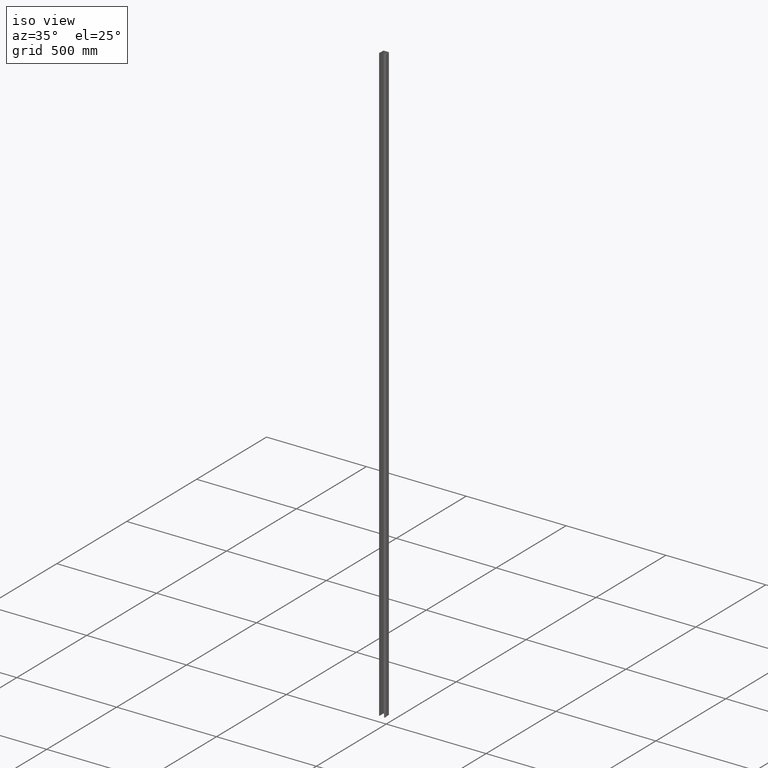
[diagram: clean part render]
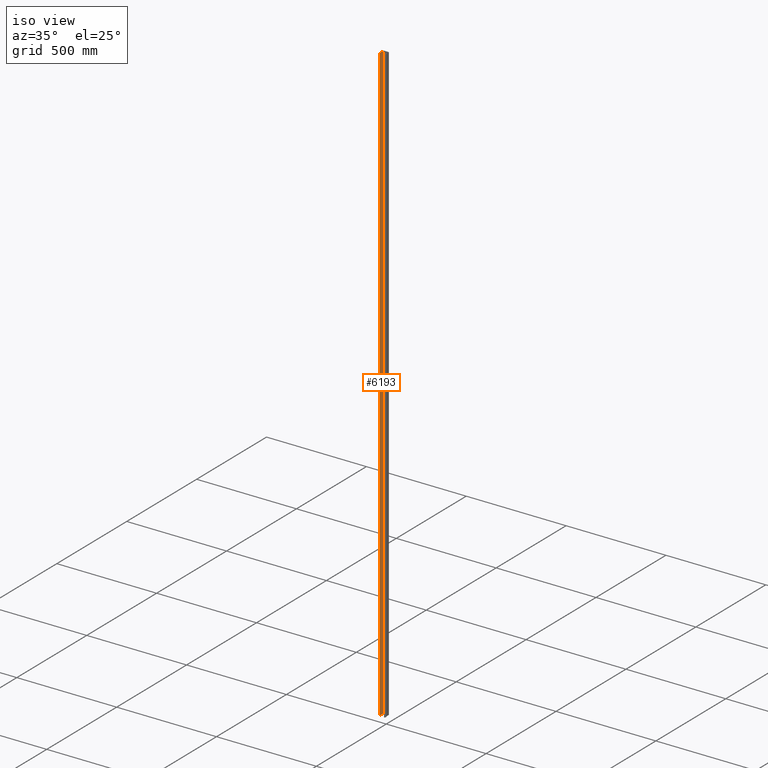
[diagram: same view with one face highlighted and labeled with its STEP entity id]
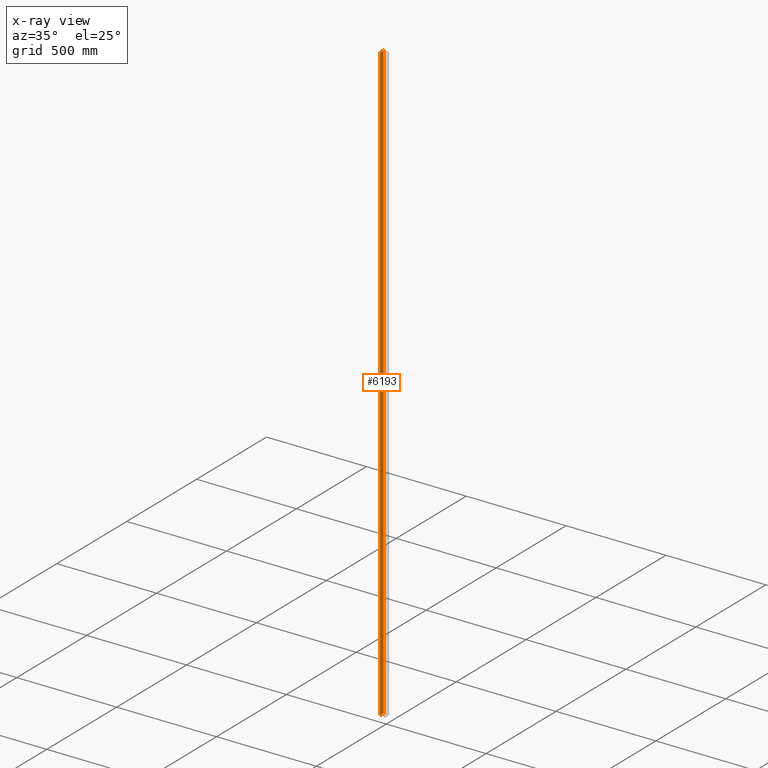
[diagram: x-ray of the same camera — body ghosted, the highlighted face saturated]
A machine part, iso view. The second image highlights one B-rep face of the part: STEP entity #6193.
The next image is the same camera in x-ray: the body ghosted, the highlighted face saturated — about 0% of this face is hidden behind the body in this view.
In plain terms, the highlighted planar face has unit normal (-1, 0, 0).
Its self-contained STEP definition (entity closure, byte-faithful):
#3 = LINE ( 'NONE', #13168, #2055 ) ;
#100 = DIRECTION ( 'NONE',  ( -1.000000000000000000, 0.000000000000000000, 0.000000000000000000 ) ) ;
#303 = VERTEX_POINT ( 'NONE', #17836 ) ;
#618 = CARTESIAN_POINT ( 'NONE',  ( -12.69999999999999574, -28.41333513318987158, 1500.000000000000000 ) ) ;
#782 = CARTESIAN_POINT ( 'NONE',  ( -12.69999999999999574, -28.41333513318987158, -1500.000000000000000 ) ) ;
#2055 = VECTOR ( 'NONE', #4245, 1000.000000000000000 ) ;
#2862 = PLANE ( 'NONE',  #10000 ) ;
#3198 = VECTOR ( 'NONE', #16931, 1000.000000000000000 ) ;
#3485 = DIRECTION ( 'NONE',  ( 0.000000000000000000, 1.000000000000000000, 0.000000000000000000 ) ) ;
#4245 = DIRECTION ( 'NONE',  ( 0.000000000000000000, 1.000000000000000000, 0.000000000000000000 ) ) ;
#5007 = LINE ( 'NONE', #16866, #3198 ) ;
#5586 = VERTEX_POINT ( 'NONE', #16818 ) ;
#6193 = ADVANCED_FACE ( 'NONE', ( #17503 ), #2862, .F. ) ;
#6975 = VERTEX_POINT ( 'NONE', #782 ) ;
#7081 = CARTESIAN_POINT ( 'NONE',  ( -12.69999999999999574, -2.500000000000001332, 1500.000000000000000 ) ) ;
#7265 = CARTESIAN_POINT ( 'NONE',  ( -12.69999999999999574, -28.41333513318987158, 1500.000000000000000 ) ) ;
#8643 = VECTOR ( 'NONE', #3485, 1000.000000000000000 ) ;
#9070 = ORIENTED_EDGE ( 'NONE', *, *, #11688, .T. ) ;
#10000 = AXIS2_PLACEMENT_3D ( 'NONE', #7265, #100, #18976 ) ;
#11604 = EDGE_CURVE ( 'NONE', #13330, #303, #5007, .T. ) ;
#11688 = EDGE_CURVE ( 'NONE', #6975, #303, #3, .T. ) ;
#12217 = LINE ( 'NONE', #618, #16542 ) ;
#12313 = EDGE_CURVE ( 'NONE', #5586, #13330, #17803, .T. ) ;
#13168 = CARTESIAN_POINT ( 'NONE',  ( -12.69999999999999574, -28.41333513318987158, -1500.000000000000000 ) ) ;
#13325 = ORIENTED_EDGE ( 'NONE', *, *, #12313, .F. ) ;
#13330 = VERTEX_POINT ( 'NONE', #7081 ) ;
#13853 = EDGE_CURVE ( 'NONE', #5586, #6975, #12217, .T. ) ;
#13885 = CARTESIAN_POINT ( 'NONE',  ( -12.69999999999999574, -28.41333513318987158, 1500.000000000000000 ) ) ;
#15528 = DIRECTION ( 'NONE',  ( -0.000000000000000000, -0.000000000000000000, -1.000000000000000000 ) ) ;
#15680 = EDGE_LOOP ( 'NONE', ( #9070, #18875, #13325, #17711 ) ) ;
#16542 = VECTOR ( 'NONE', #15528, 1000.000000000000000 ) ;
#16818 = CARTESIAN_POINT ( 'NONE',  ( -12.69999999999999574, -28.41333513318987158, 1500.000000000000000 ) ) ;
#16866 = CARTESIAN_POINT ( 'NONE',  ( -12.69999999999999574, -2.500000000000001332, 1500.000000000000000 ) ) ;
#16931 = DIRECTION ( 'NONE',  ( -0.000000000000000000, -0.000000000000000000, -1.000000000000000000 ) ) ;
#17503 = FACE_OUTER_BOUND ( 'NONE', #15680, .T. ) ;
#17711 = ORIENTED_EDGE ( 'NONE', *, *, #13853, .T. ) ;
#17803 = LINE ( 'NONE', #13885, #8643 ) ;
#17836 = CARTESIAN_POINT ( 'NONE',  ( -12.69999999999999574, -2.500000000000001332, -1500.000000000000000 ) ) ;
#18875 = ORIENTED_EDGE ( 'NONE', *, *, #11604, .F. ) ;
#18976 = DIRECTION ( 'NONE',  ( 0.000000000000000000, 0.000000000000000000, 1.000000000000000000 ) ) ;